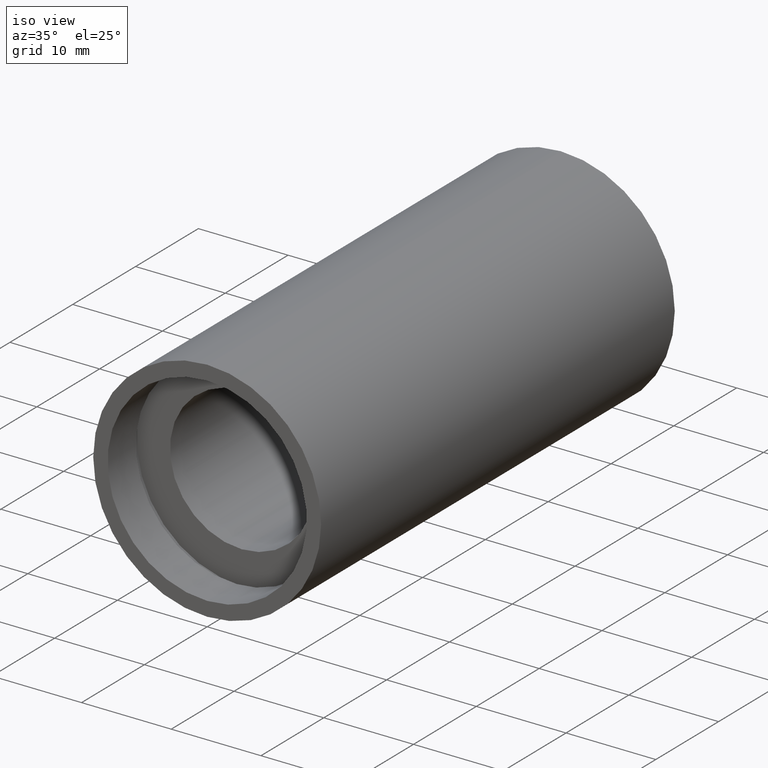
[diagram: clean part render]
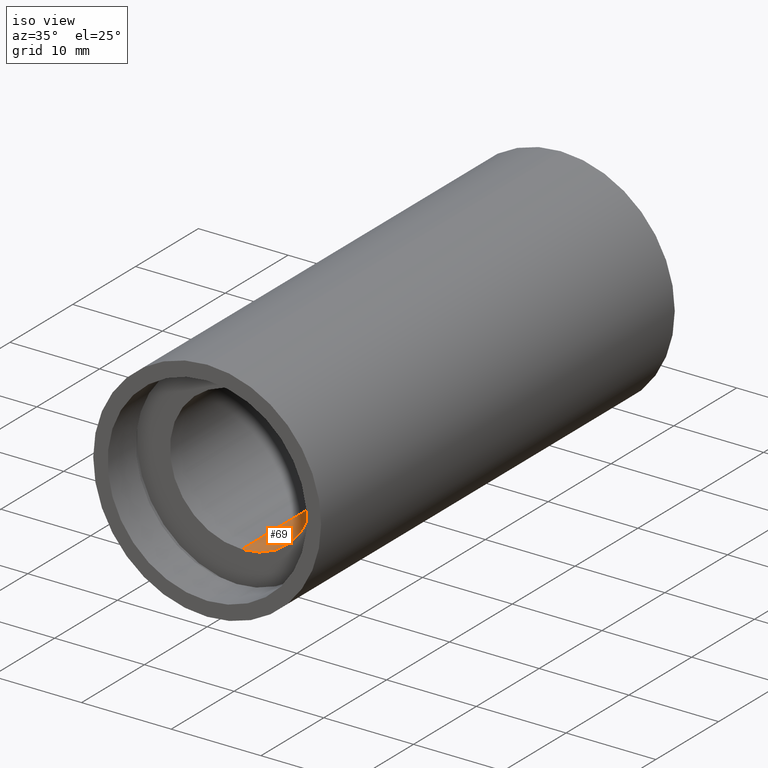
[diagram: same view with one face highlighted and labeled with its STEP entity id]
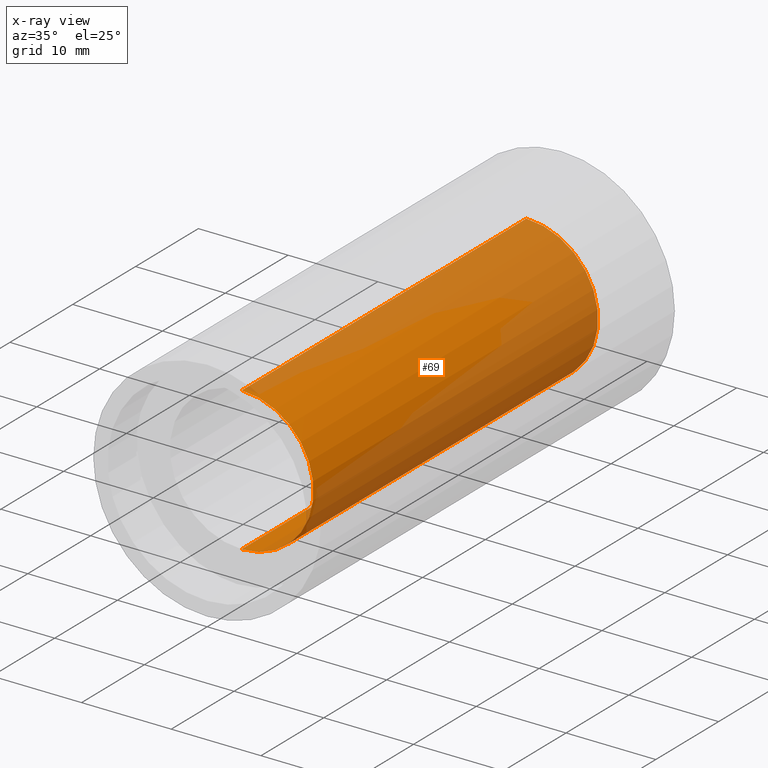
[diagram: x-ray of the same camera — body ghosted, the highlighted face saturated]
A machine part, iso view. The second image highlights one B-rep face of the part: STEP entity #69.
The next image is the same camera in x-ray: the body ghosted, the highlighted face saturated — about 60% of this face is hidden behind the body in this view.
In plain terms, the highlighted cylindrical surface (partial cylindrical patch) has radius 8 mm, axis along (-0, 1, -0).
Its self-contained STEP definition (entity closure, byte-faithful):
#2 = LINE ( 'NONE', #307, #295 ) ;
#7 = CIRCLE ( 'NONE', #447, 8.000000000000019500 ) ;
#20 = EDGE_CURVE ( 'NONE', #45, #96, #521, .T. ) ;
#45 = VERTEX_POINT ( 'NONE', #148 ) ;
#65 = DIRECTION ( 'NONE',  ( -0.0000000000000000000, 1.000000000000000000, -0.0000000000000000000 ) ) ;
#69 = ADVANCED_FACE ( 'NONE', ( #574 ), #485, .F. ) ;
#70 = ORIENTED_EDGE ( 'NONE', *, *, #498, .F. ) ;
#96 = VERTEX_POINT ( 'NONE', #452 ) ;
#118 = ORIENTED_EDGE ( 'NONE', *, *, #158, .F. ) ;
#126 = DIRECTION ( 'NONE',  ( 0.0000000000000000000, 0.0000000000000000000, 1.000000000000000000 ) ) ;
#148 = CARTESIAN_POINT ( 'NONE',  ( 0.0000000000000000000, 50.79999999999998300, 8.000000000000019500 ) ) ;
#156 = CARTESIAN_POINT ( 'NONE',  ( 0.0000000000000000000, 161.3761669434274500, 0.0000000000000000000 ) ) ;
#158 = EDGE_CURVE ( 'NONE', #622, #408, #7, .T. ) ;
#186 = EDGE_LOOP ( 'NONE', ( #70, #118, #302, #585 ) ) ;
#199 = DIRECTION ( 'NONE',  ( 0.0000000000000000000, 0.0000000000000000000, 1.000000000000000000 ) ) ;
#216 = DIRECTION ( 'NONE',  ( -0.0000000000000000000, 1.000000000000000000, -0.0000000000000000000 ) ) ;
#253 = DIRECTION ( 'NONE',  ( 0.0000000000000000000, 0.0000000000000000000, 1.000000000000000000 ) ) ;
#261 = LINE ( 'NONE', #504, #537 ) ;
#292 = CARTESIAN_POINT ( 'NONE',  ( 0.0000000000000000000, 50.79999999999998300, 0.0000000000000000000 ) ) ;
#295 = VECTOR ( 'NONE', #599, 1000.000000000000000 ) ;
#297 = CARTESIAN_POINT ( 'NONE',  ( 9.797174393178849300E-016, 5.499999999999976900, -8.000000000000019500 ) ) ;
#302 = ORIENTED_EDGE ( 'NONE', *, *, #527, .T. ) ;
#307 = CARTESIAN_POINT ( 'NONE',  ( 9.797174393178849300E-016, 161.3761669434274500, -8.000000000000019500 ) ) ;
#383 = AXIS2_PLACEMENT_3D ( 'NONE', #156, #584, #253 ) ;
#408 = VERTEX_POINT ( 'NONE', #297 ) ;
#423 = CARTESIAN_POINT ( 'NONE',  ( 0.0000000000000000000, 5.499999999999976900, 8.000000000000019500 ) ) ;
#447 = AXIS2_PLACEMENT_3D ( 'NONE', #598, #216, #126 ) ;
#452 = CARTESIAN_POINT ( 'NONE',  ( 9.797174393178849300E-016, 50.79999999999998300, -8.000000000000019500 ) ) ;
#469 = AXIS2_PLACEMENT_3D ( 'NONE', #292, #65, #199 ) ;
#485 = CYLINDRICAL_SURFACE ( 'NONE', #383, 8.000000000000019500 ) ;
#498 = EDGE_CURVE ( 'NONE', #408, #96, #2, .T. ) ;
#504 = CARTESIAN_POINT ( 'NONE',  ( 0.0000000000000000000, 161.3761669434274500, 8.000000000000019500 ) ) ;
#521 = CIRCLE ( 'NONE', #469, 8.000000000000019500 ) ;
#527 = EDGE_CURVE ( 'NONE', #622, #45, #261, .T. ) ;
#537 = VECTOR ( 'NONE', #545, 1000.000000000000000 ) ;
#545 = DIRECTION ( 'NONE',  ( -0.0000000000000000000, 1.000000000000000000, -0.0000000000000000000 ) ) ;
#574 = FACE_OUTER_BOUND ( 'NONE', #186, .T. ) ;
#584 = DIRECTION ( 'NONE',  ( -0.0000000000000000000, 1.000000000000000000, -0.0000000000000000000 ) ) ;
#585 = ORIENTED_EDGE ( 'NONE', *, *, #20, .T. ) ;
#598 = CARTESIAN_POINT ( 'NONE',  ( 0.0000000000000000000, 5.499999999999976900, 0.0000000000000000000 ) ) ;
#599 = DIRECTION ( 'NONE',  ( -0.0000000000000000000, 1.000000000000000000, -0.0000000000000000000 ) ) ;
#622 = VERTEX_POINT ( 'NONE', #423 ) ;